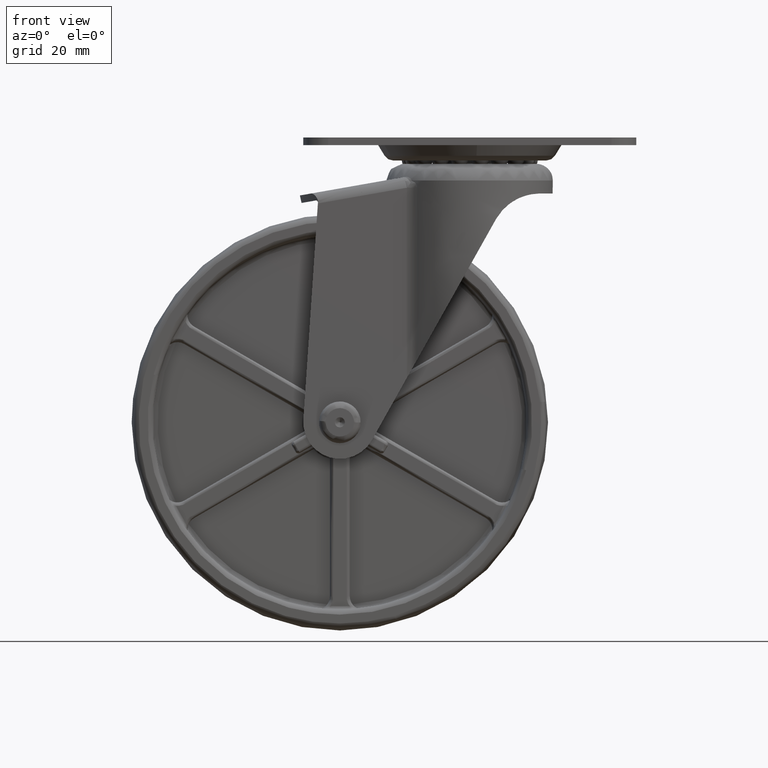
[diagram: clean part render]
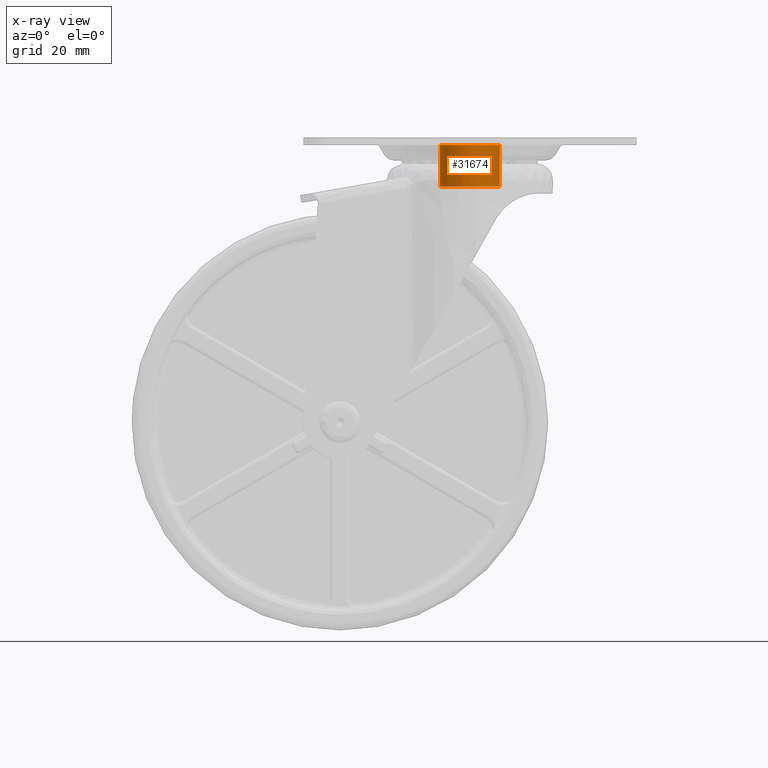
[diagram: x-ray — body ghosted, one internal face saturated and labeled with its STEP entity id]
A machine part, front view, then the same camera in x-ray: the body is ghosted and one INTERNAL B-rep face — a face not visible from any outside direction — is saturated and labeled: STEP entity #31674.
In plain terms, the highlighted face is a freeform B-spline surface patch.
Its self-contained STEP definition (entity closure, byte-faithful):
#31495=CARTESIAN_POINT('',(45.838371058770498,5.851211948183902,83.512496950000028));
#31496=CARTESIAN_POINT('',(46.352948816678179,5.249819676236711,83.512496950000028));
#31497=CARTESIAN_POINT('',(46.754662443973729,4.567845266646335,83.512496950000013));
#31498=CARTESIAN_POINT('',(51.322507710620080,-3.186817177327395,83.512496950000013));
#31499=CARTESIAN_POINT('',(43.567845266646337,-7.754662443973730,83.512496950000013));
#31500=CARTESIAN_POINT('',(35.813182822672616,-12.322507710620066,83.512496950000013));
#31501=CARTESIAN_POINT('',(31.245337556026271,-4.567845266646335,83.512496950000013));
#31502=CARTESIAN_POINT('',(26.677492289379938,3.186817177327395,83.512496950000013));
#31503=CARTESIAN_POINT('',(34.432154733353663,7.754662443973730,83.512496950000013));
#31504=CARTESIAN_POINT('',(45.838371058770498,5.851211948183902,70.379686551250074));
#31505=CARTESIAN_POINT('',(46.352948816678179,5.249819676236711,70.379686551250074));
#31506=CARTESIAN_POINT('',(46.754662443973729,4.567845266646335,70.379686551250074));
#31507=CARTESIAN_POINT('',(51.322507710620080,-3.186817177327395,70.379686551250074));
#31508=CARTESIAN_POINT('',(43.567845266646337,-7.754662443973730,70.379686551250074));
#31509=CARTESIAN_POINT('',(35.813182822672616,-12.322507710620066,70.379686551250074));
#31510=CARTESIAN_POINT('',(31.245337556026271,-4.567845266646335,70.379686551250074));
#31511=CARTESIAN_POINT('',(26.677492289379938,3.186817177327395,70.379686551250074));
#31512=CARTESIAN_POINT('',(34.432154733353663,7.754662443973730,70.379686551250074));
#31520=(BOUNDED_SURFACE()B_SPLINE_SURFACE(2,1,((#31495,#31504),(#31496,#31505),(#31497,#31506),(#31498,#31507),(#31499,#31508),(#31500,#31509),(#31501,#31510),(#31502,#31511),(#31503,#31512)),.UNSPECIFIED.,.F.,.F.,.U.)B_SPLINE_SURFACE_WITH_KNOTS((3,2,2,2,3),(2,2),(0.0,1.789402589451771,16.701090834883189,31.612779080314610,46.524467325746031),(0.0,13.132810398749969),.UNSPECIFIED.)GEOMETRIC_REPRESENTATION_ITEM()RATIONAL_B_SPLINE_SURFACE(((0.938140952186599,0.938140952186599),(0.964852813742386,0.964852813742386),(1.0,1.0),(0.707106781186548,0.707106781186548),(1.0,1.0),(0.707106781186548,0.707106781186548),(1.0,1.0),(0.707106781186548,0.707106781186548),(1.0,1.0)))REPRESENTATION_ITEM('')SURFACE());
#31521=CARTESIAN_POINT('',(45.838371720978628,5.851211174254326,83.199996999999996));
#31522=VERTEX_POINT('',#31521);
#31523=CARTESIAN_POINT('',(48.0,0.0,83.199996999999996));
#31524=VERTEX_POINT('',#31523);
#31525=CARTESIAN_POINT('',(45.838371720978685,5.851211174254370,83.199997000000010));
#31526=CARTESIAN_POINT('',(48.000000000000007,3.324893587295814,83.199997000000010));
#31527=CARTESIAN_POINT('',(48.0,0.0,83.199996999999996));
#31535=(BOUNDED_CURVE()B_SPLINE_CURVE(2,(#31525,#31526,#31527),.UNSPECIFIED.,.F.,.U.)B_SPLINE_CURVE_WITH_KNOTS((3,3),(0.386720349736390,0.500000000000000),.UNSPECIFIED.)CURVE()GEOMETRIC_REPRESENTATION_ITEM()RATIONAL_B_SPLINE_CURVE((0.854840870434204,0.867284634432917,1.0))REPRESENTATION_ITEM(''));
#31536=EDGE_CURVE('',#31522,#31524,#31535,.T.);
#31537=ORIENTED_EDGE('',*,*,#31536,.T.);
#31538=CARTESIAN_POINT('',(30.0,0.0,83.199996999999996));
#31539=VERTEX_POINT('',#31538);
#31540=CARTESIAN_POINT('',(48.0,0.0,83.199996999999996));
#31541=CARTESIAN_POINT('',(48.0,-9.0,83.199996999999996));
#31542=CARTESIAN_POINT('',(39.0,-9.0,83.199996999999996));
#31543=CARTESIAN_POINT('',(29.999999999999993,-9.0,83.199996999999996));
#31544=CARTESIAN_POINT('',(30.0,0.0,83.199996999999996));
#31552=(BOUNDED_CURVE()B_SPLINE_CURVE(2,(#31540,#31541,#31542,#31543,#31544),.UNSPECIFIED.,.F.,.U.)B_SPLINE_CURVE_WITH_KNOTS((3,2,3),(0.500000000000000,0.750000000000000,1.0),.UNSPECIFIED.)CURVE()GEOMETRIC_REPRESENTATION_ITEM()RATIONAL_B_SPLINE_CURVE((1.0,0.707106781186547,1.0,0.707106781186547,1.0))REPRESENTATION_ITEM(''));
#31553=EDGE_CURVE('',#31524,#31539,#31552,.T.);
#31554=ORIENTED_EDGE('',*,*,#31553,.T.);
#31555=CARTESIAN_POINT('',(34.432160515043542,7.754665849643532,83.199997000000025));
#31556=VERTEX_POINT('',#31555);
#31557=CARTESIAN_POINT('',(30.0,0.0,83.199996999999996));
#31558=CARTESIAN_POINT('',(29.999999999999993,5.143928237372464,83.199996999999996));
#31559=CARTESIAN_POINT('',(34.432160515043535,7.754665849643533,83.199997000000025));
#31567=(BOUNDED_CURVE()B_SPLINE_CURVE(2,(#31557,#31558,#31559),.UNSPECIFIED.,.F.,.U.)B_SPLINE_CURVE_WITH_KNOTS((3,3),(0.0,0.163390958909339),.UNSPECIFIED.)CURVE()GEOMETRIC_REPRESENTATION_ITEM()RATIONAL_B_SPLINE_CURVE((1.0,0.808575584480109,0.867367319443856))REPRESENTATION_ITEM(''));
#31568=EDGE_CURVE('',#31539,#31556,#31567,.T.);
#31569=ORIENTED_EDGE('',*,*,#31568,.T.);
#31570=CARTESIAN_POINT('',(34.432154247481009,7.754662157772823,70.699999000000091));
#31571=VERTEX_POINT('',#31570);
#31572=CARTESIAN_POINT('',(34.432160515043542,7.754665849643532,83.199997000000025));
#31573=CARTESIAN_POINT('',(34.432154247481009,7.754662157772823,70.699999000000091));
#31574=QUASI_UNIFORM_CURVE('',1,(#31572,#31573),.UNSPECIFIED.,.F.,.U.);
#31575=EDGE_CURVE('',#31556,#31571,#31574,.T.);
#31576=ORIENTED_EDGE('',*,*,#31575,.T.);
#31577=CARTESIAN_POINT('',(31.205771365939949,4.499999999999949,70.699999000000091));
#31578=VERTEX_POINT('',#31577);
#31579=CARTESIAN_POINT('',(31.205771365940009,4.499999999999919,70.699999000000091));
#31580=CARTESIAN_POINT('',(32.390522192414259,6.552048625762597,70.699999000000091));
#31581=CARTESIAN_POINT('',(34.432154247481009,7.754662157772823,70.699999000000091));
#31589=(BOUNDED_CURVE()B_SPLINE_CURVE(2,(#31579,#31580,#31581),.UNSPECIFIED.,.F.,.U.)B_SPLINE_CURVE_WITH_KNOTS((3,3),(0.0,0.491857759603870),.UNSPECIFIED.)CURVE()GEOMETRIC_REPRESENTATION_ITEM()RATIONAL_B_SPLINE_CURVE((1.0,0.934103555261580,0.933030465872959))REPRESENTATION_ITEM(''));
#31590=EDGE_CURVE('',#31578,#31571,#31589,.T.);
#31591=ORIENTED_EDGE('',*,*,#31590,.F.);
#31592=CARTESIAN_POINT('',(31.205771365939501,-4.500000000000280,70.699999000000091));
#31593=VERTEX_POINT('',#31592);
#31594=CARTESIAN_POINT('',(31.205771365939501,-4.500000000000280,70.699999000000091));
#31595=CARTESIAN_POINT('',(28.607695154586775,-3.642919E-014,70.699999000000091));
#31596=CARTESIAN_POINT('',(31.205771365940009,4.499999999999917,70.699999000000091));
#31604=(BOUNDED_CURVE()B_SPLINE_CURVE(2,(#31594,#31595,#31596),.UNSPECIFIED.,.F.,.U.)CURVE()GEOMETRIC_REPRESENTATION_ITEM()QUASI_UNIFORM_CURVE()RATIONAL_B_SPLINE_CURVE((1.0,0.866025403784442,1.0))REPRESENTATION_ITEM(''));
#31605=EDGE_CURVE('',#31593,#31578,#31604,.T.);
#31606=ORIENTED_EDGE('',*,*,#31605,.F.);
#31607=CARTESIAN_POINT('',(39.0,-9.0,70.699999000000091));
#31608=VERTEX_POINT('',#31607);
#31609=CARTESIAN_POINT('',(39.0,-9.0,70.699999000000091));
#31610=CARTESIAN_POINT('',(33.803847577293340,-9.0,70.699999000000091));
#31611=CARTESIAN_POINT('',(31.205771365939501,-4.500000000000280,70.699999000000091));
#31619=(BOUNDED_CURVE()B_SPLINE_CURVE(2,(#31609,#31610,#31611),.UNSPECIFIED.,.F.,.U.)CURVE()GEOMETRIC_REPRESENTATION_ITEM()QUASI_UNIFORM_CURVE()RATIONAL_B_SPLINE_CURVE((1.0,0.866025403784438,1.0))REPRESENTATION_ITEM(''));
#31620=EDGE_CURVE('',#31608,#31593,#31619,.T.);
#31621=ORIENTED_EDGE('',*,*,#31620,.F.);
#31622=CARTESIAN_POINT('',(46.794228634060097,-4.500000000000170,70.699999000000091));
#31623=VERTEX_POINT('',#31622);
#31624=CARTESIAN_POINT('',(46.794228634060097,-4.500000000000170,70.699999000000091));
#31625=CARTESIAN_POINT('',(44.196152422706575,-9.0,70.699999000000091));
#31626=CARTESIAN_POINT('',(39.0,-9.0,70.699999000000091));
#31634=(BOUNDED_CURVE()B_SPLINE_CURVE(2,(#31624,#31625,#31626),.UNSPECIFIED.,.F.,.U.)CURVE()GEOMETRIC_REPRESENTATION_ITEM()QUASI_UNIFORM_CURVE()RATIONAL_B_SPLINE_CURVE((1.0,0.866025403784440,1.0))REPRESENTATION_ITEM(''));
#31635=EDGE_CURVE('',#31623,#31608,#31634,.T.);
#31636=ORIENTED_EDGE('',*,*,#31635,.F.);
#31637=CARTESIAN_POINT('',(46.794228634059998,4.500000000000060,70.699999000000091));
#31638=VERTEX_POINT('',#31637);
#31639=CARTESIAN_POINT('',(46.794228634059927,4.500000000000024,70.699999000000091));
#31640=CARTESIAN_POINT('',(49.392304845413292,-2.255141E-014,70.699999000000091));
#31641=CARTESIAN_POINT('',(46.794228634060097,-4.500000000000170,70.699999000000091));
#31649=(BOUNDED_CURVE()B_SPLINE_CURVE(2,(#31639,#31640,#31641),.UNSPECIFIED.,.F.,.U.)CURVE()GEOMETRIC_REPRESENTATION_ITEM()QUASI_UNIFORM_CURVE()RATIONAL_B_SPLINE_CURVE((1.0,0.866025403784436,1.0))REPRESENTATION_ITEM(''));
#31650=EDGE_CURVE('',#31638,#31623,#31649,.T.);
#31651=ORIENTED_EDGE('',*,*,#31650,.F.);
#31652=CARTESIAN_POINT('',(45.838371058767201,5.851211948187751,70.699999000000091));
#31653=VERTEX_POINT('',#31652);
#31654=CARTESIAN_POINT('',(45.838371058767201,5.851211948187751,70.699999000000091));
#31655=CARTESIAN_POINT('',(46.378687042373798,5.219739149458453,70.699999000000091));
#31656=CARTESIAN_POINT('',(46.794228634059927,4.500000000000024,70.699999000000091));
#31664=(BOUNDED_CURVE()B_SPLINE_CURVE(2,(#31654,#31655,#31656),.UNSPECIFIED.,.F.,.U.)B_SPLINE_CURVE_WITH_KNOTS((3,3),(0.819774196576936,1.0),.UNSPECIFIED.)CURVE()GEOMETRIC_REPRESENTATION_ITEM()RATIONAL_B_SPLINE_CURVE((0.960411990398433,0.975854320758770,1.0))REPRESENTATION_ITEM(''));
#31665=EDGE_CURVE('',#31653,#31638,#31664,.T.);
#31666=ORIENTED_EDGE('',*,*,#31665,.F.);
#31667=CARTESIAN_POINT('',(45.838371720978628,5.851211174254326,83.199996999999996));
#31668=CARTESIAN_POINT('',(45.838371058767201,5.851211948187751,70.699999000000091));
#31669=QUASI_UNIFORM_CURVE('',1,(#31667,#31668),.UNSPECIFIED.,.F.,.U.);
#31670=EDGE_CURVE('',#31522,#31653,#31669,.T.);
#31671=ORIENTED_EDGE('',*,*,#31670,.F.);
#31672=EDGE_LOOP('',(#31537,#31554,#31569,#31576,#31591,#31606,#31621,#31636,#31651,#31666,#31671));
#31673=FACE_OUTER_BOUND('',#31672,.T.);
#31674=ADVANCED_FACE('',(#31673),#31520,.T.);